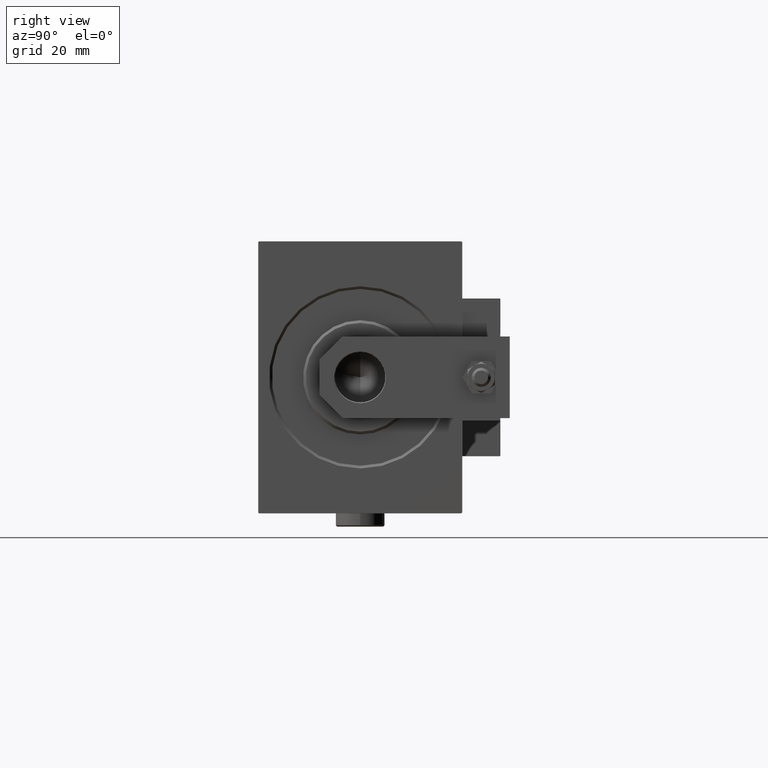
[diagram: clean part render]
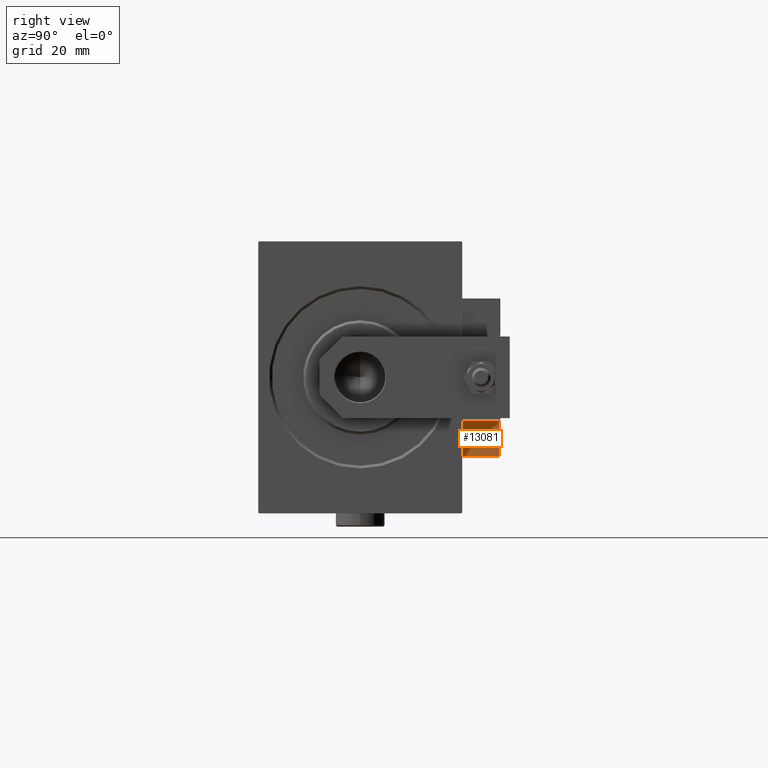
[diagram: same view with one face highlighted and labeled with its STEP entity id]
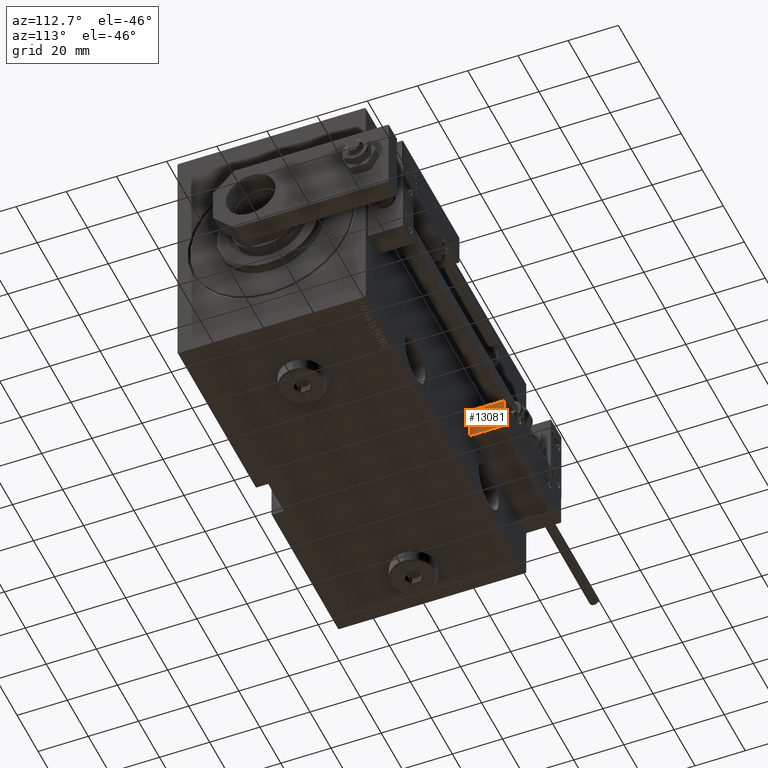
[diagram: same view with one face highlighted and labeled with its STEP entity id]
A machine part, right view. The second image highlights one B-rep face of the part: STEP entity #13081.
A second angle (auxiliary view) of the same face is appended — the face is thin or edge-on in the first view.
In plain terms, the highlighted planar face has unit normal (-1, -0, -0).
Its self-contained STEP definition (entity closure, byte-faithful):
#1382 = DIRECTION ( 'NONE',  ( 0.000000000000000000, 0.000000000000000000, 1.000000000000000000 ) ) ;
#3693 = LINE ( 'NONE', #26794, #49859 ) ;
#4167 = ORIENTED_EDGE ( 'NONE', *, *, #13370, .T. ) ;
#5608 = DIRECTION ( 'NONE',  ( -0.000000000000000000, -1.000000000000000000, -0.000000000000000000 ) ) ;
#5674 = DIRECTION ( 'NONE',  ( -0.000000000000000000, -0.000000000000000000, -1.000000000000000000 ) ) ;
#10286 = CARTESIAN_POINT ( 'NONE',  ( 27.00000000000006395, 7.000000000000007994, 13.70000000000000107 ) ) ;
#12915 = VERTEX_POINT ( 'NONE', #26641 ) ;
#13081 = ADVANCED_FACE ( 'NONE', ( #21874 ), #49676, .F. ) ;
#13370 = EDGE_CURVE ( 'NONE', #35952, #38031, #33372, .T. ) ;
#13788 = EDGE_CURVE ( 'NONE', #35952, #17955, #3693, .T. ) ;
#15542 = DIRECTION ( 'NONE',  ( 0.000000000000000000, 1.000000000000000000, 0.000000000000000000 ) ) ;
#15648 = DIRECTION ( 'NONE',  ( -0.000000000000000000, -0.000000000000000000, -1.000000000000000000 ) ) ;
#16798 = CARTESIAN_POINT ( 'NONE',  ( 27.00000000000006395, 20.00000000000001776, 13.70000000000000107 ) ) ;
#17310 = CARTESIAN_POINT ( 'NONE',  ( 27.00000000000006395, 7.000000000000007994, 13.70000000000000107 ) ) ;
#17955 = VERTEX_POINT ( 'NONE', #35721 ) ;
#21612 = DIRECTION ( 'NONE',  ( -1.000000000000000000, 0.000000000000000000, 0.000000000000000000 ) ) ;
#21874 = FACE_OUTER_BOUND ( 'NONE', #33854, .T. ) ;
#26209 = VECTOR ( 'NONE', #15542, 1000.000000000000000 ) ;
#26501 = CARTESIAN_POINT ( 'NONE',  ( 27.00000000000006395, 7.000000000000007994, 0.000000000000000000 ) ) ;
#26641 = CARTESIAN_POINT ( 'NONE',  ( 27.00000000000006395, 7.000000000000007994, 0.000000000000000000 ) ) ;
#26794 = CARTESIAN_POINT ( 'NONE',  ( 27.00000000000006395, 20.00000000000001776, 14.00000000000000000 ) ) ;
#28971 = EDGE_CURVE ( 'NONE', #12915, #17955, #48891, .T. ) ;
#29385 = CARTESIAN_POINT ( 'NONE',  ( 27.00000000000006395, 7.000000000000007994, 14.00000000000000000 ) ) ;
#29862 = ORIENTED_EDGE ( 'NONE', *, *, #28971, .T. ) ;
#32467 = ORIENTED_EDGE ( 'NONE', *, *, #13788, .F. ) ;
#33372 = LINE ( 'NONE', #10286, #34038 ) ;
#33707 = LINE ( 'NONE', #49581, #34618 ) ;
#33854 = EDGE_LOOP ( 'NONE', ( #32467, #4167, #43642, #29862 ) ) ;
#34038 = VECTOR ( 'NONE', #5608, 1000.000000000000000 ) ;
#34618 = VECTOR ( 'NONE', #5674, 1000.000000000000000 ) ;
#35721 = CARTESIAN_POINT ( 'NONE',  ( 27.00000000000006395, 20.00000000000001776, 0.000000000000000000 ) ) ;
#35952 = VERTEX_POINT ( 'NONE', #16798 ) ;
#36937 = EDGE_CURVE ( 'NONE', #38031, #12915, #33707, .T. ) ;
#38031 = VERTEX_POINT ( 'NONE', #17310 ) ;
#43642 = ORIENTED_EDGE ( 'NONE', *, *, #36937, .T. ) ;
#48891 = LINE ( 'NONE', #26501, #26209 ) ;
#48964 = AXIS2_PLACEMENT_3D ( 'NONE', #29385, #21612, #1382 ) ;
#49581 = CARTESIAN_POINT ( 'NONE',  ( 27.00000000000006395, 7.000000000000007994, 14.00000000000000000 ) ) ;
#49676 = PLANE ( 'NONE',  #48964 ) ;
#49859 = VECTOR ( 'NONE', #15648, 1000.000000000000000 ) ;